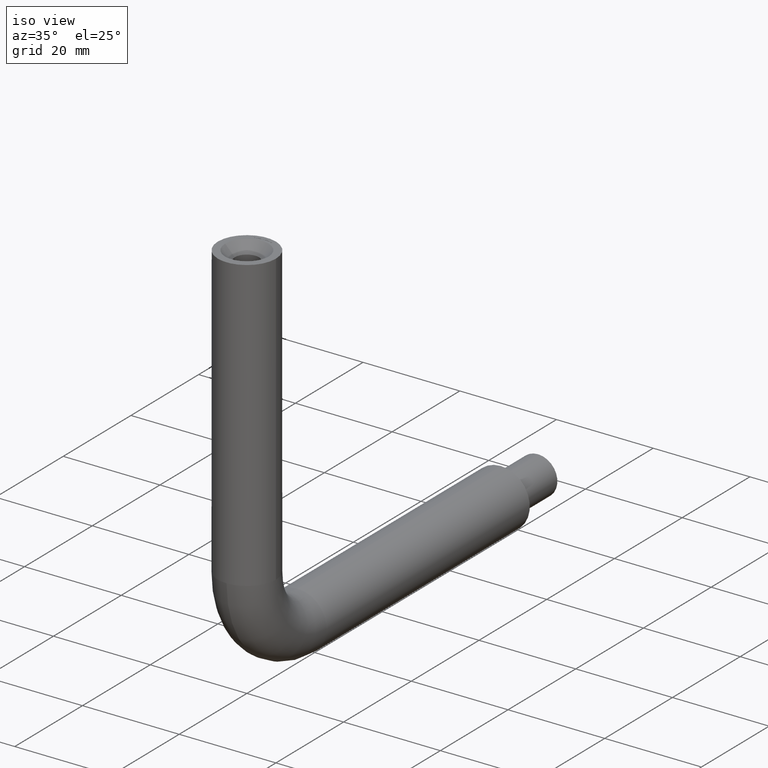
[diagram: clean part render]
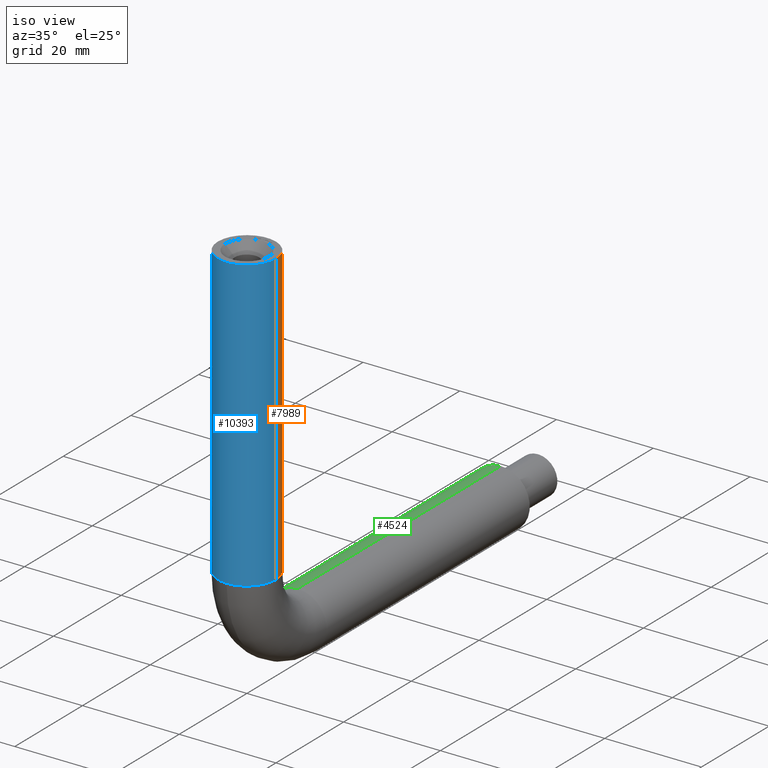
[diagram: same view with three faces highlighted in distinct colors, each labeled with its STEP entity id]
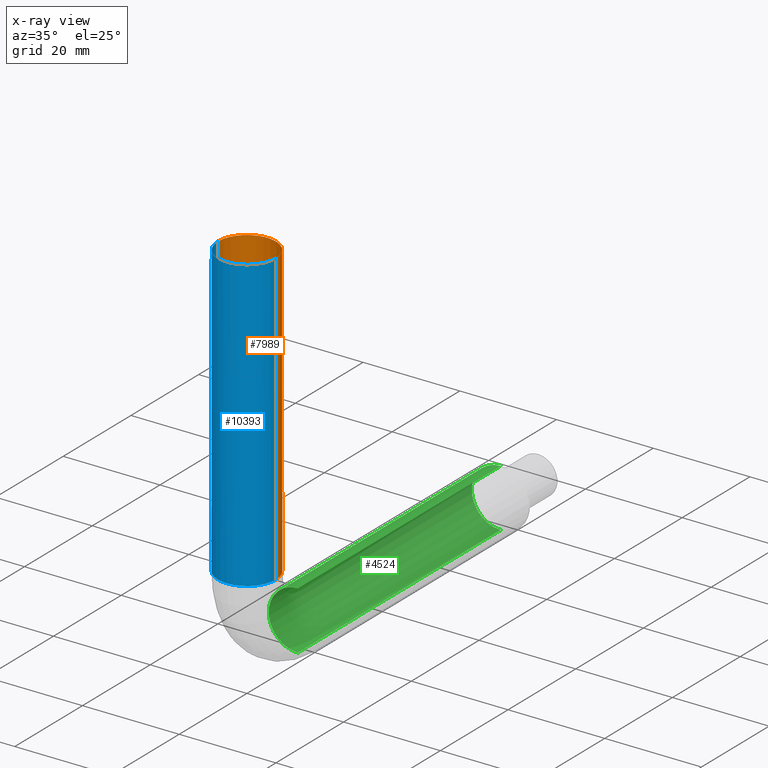
[diagram: x-ray of the same camera — body ghosted, the three highlighted faces saturated]
A machine part, iso view with three faces highlighted in distinct colors.
The next image is the same camera in x-ray (body ghosted, the three faces saturated) — at least one of them is partly hidden behind the body in this view.
Their STEP definitions:

[orange] entity #7989 — the highlighted cylindrical surface (edge-blend (fillet) strip) has radius 6 mm, axis along (-0, -0, 1).
#544 = EDGE_CURVE ( 'NONE', #12681, #10943, #8227, .T. ) ;
#631 = DIRECTION ( 'NONE',  ( -0.0000000000000000000, -0.0000000000000000000, 1.000000000000000000 ) ) ;
#1374 = CARTESIAN_POINT ( 'NONE',  ( 6.000000000000000900, 0.0000000000000000000, -59.99999999999989300 ) ) ;
#1826 = DIRECTION ( 'NONE',  ( 1.000000000000000000, 0.0000000000000000000, 0.0000000000000000000 ) ) ;
#1849 = CARTESIAN_POINT ( 'NONE',  ( 0.0000000000000000000, 0.0000000000000000000, -59.99999999999989300 ) ) ;
#1990 = VECTOR ( 'NONE', #12369, 1000.000000000000000 ) ;
#2068 = DIRECTION ( 'NONE',  ( 1.000000000000000000, 0.0000000000000000000, 0.0000000000000000000 ) ) ;
#2749 = CYLINDRICAL_SURFACE ( 'NONE', #7170, 6.000000000000000900 ) ;
#3036 = CIRCLE ( 'NONE', #13271, 6.000000000000000900 ) ;
#3119 = AXIS2_PLACEMENT_3D ( 'NONE', #1849, #12845, #10703 ) ;
#3825 = EDGE_CURVE ( 'NONE', #11259, #9436, #10458, .T. ) ;
#3893 = ORIENTED_EDGE ( 'NONE', *, *, #7891, .T. ) ;
#4550 = CARTESIAN_POINT ( 'NONE',  ( -6.000000000000000900, 7.347880794884120700E-016, -59.99999999999989300 ) ) ;
#4681 = ORIENTED_EDGE ( 'NONE', *, *, #3825, .F. ) ;
#5143 = DIRECTION ( 'NONE',  ( 0.0000000000000000000, 0.0000000000000000000, 1.000000000000000000 ) ) ;
#5489 = ORIENTED_EDGE ( 'NONE', *, *, #6338, .F. ) ;
#5652 = AXIS2_PLACEMENT_3D ( 'NONE', #8731, #10969, #2068 ) ;
#6077 = EDGE_LOOP ( 'NONE', ( #3893, #8747, #12704, #4681, #5489 ) ) ;
#6257 = CARTESIAN_POINT ( 'NONE',  ( -6.000000000000000900, 7.347880794884120700E-016, 0.0000000000000000000 ) ) ;
#6338 = EDGE_CURVE ( 'NONE', #13415, #11259, #7718, .T. ) ;
#6550 = DIRECTION ( 'NONE',  ( 1.000000000000000000, 0.0000000000000000000, 0.0000000000000000000 ) ) ;
#7170 = AXIS2_PLACEMENT_3D ( 'NONE', #11866, #11912, #6550 ) ;
#7444 = EDGE_CURVE ( 'NONE', #10943, #9436, #13180, .T. ) ;
#7718 = LINE ( 'NONE', #14075, #11765 ) ;
#7891 = EDGE_CURVE ( 'NONE', #13415, #12681, #3036, .T. ) ;
#7989 = ADVANCED_FACE ( 'NONE', ( #9358 ), #2749, .T. ) ;
#8227 = CIRCLE ( 'NONE', #3119, 6.000000000000000900 ) ;
#8229 = CARTESIAN_POINT ( 'NONE',  ( 6.000000000000000900, 0.0000000000000000000, 0.0000000000000000000 ) ) ;
#8547 = CARTESIAN_POINT ( 'NONE',  ( 0.0000000000000000000, 0.0000000000000000000, -59.99999999999989300 ) ) ;
#8731 = CARTESIAN_POINT ( 'NONE',  ( -0.0000000000000000000, 0.0000000000000000000, 0.0000000000000000000 ) ) ;
#8747 = ORIENTED_EDGE ( 'NONE', *, *, #544, .T. ) ;
#9358 = FACE_OUTER_BOUND ( 'NONE', #6077, .T. ) ;
#9436 = VERTEX_POINT ( 'NONE', #6257 ) ;
#10458 = CIRCLE ( 'NONE', #5652, 6.000000000000000900 ) ;
#10703 = DIRECTION ( 'NONE',  ( 1.000000000000000000, 0.0000000000000000000, 0.0000000000000000000 ) ) ;
#10943 = VERTEX_POINT ( 'NONE', #14204 ) ;
#10969 = DIRECTION ( 'NONE',  ( 0.0000000000000000000, 0.0000000000000000000, 1.000000000000000000 ) ) ;
#11259 = VERTEX_POINT ( 'NONE', #8229 ) ;
#11765 = VECTOR ( 'NONE', #631, 1000.000000000000000 ) ;
#11866 = CARTESIAN_POINT ( 'NONE',  ( 0.0000000000000000000, 0.0000000000000000000, -59.99999999999989300 ) ) ;
#11912 = DIRECTION ( 'NONE',  ( -0.0000000000000000000, -0.0000000000000000000, 1.000000000000000000 ) ) ;
#12006 = CARTESIAN_POINT ( 'NONE',  ( -7.347880794884119700E-016, 6.000000000000000900, -59.99999999999989300 ) ) ;
#12369 = DIRECTION ( 'NONE',  ( -0.0000000000000000000, -0.0000000000000000000, 1.000000000000000000 ) ) ;
#12681 = VERTEX_POINT ( 'NONE', #12006 ) ;
#12704 = ORIENTED_EDGE ( 'NONE', *, *, #7444, .T. ) ;
#12845 = DIRECTION ( 'NONE',  ( 0.0000000000000000000, 0.0000000000000000000, 1.000000000000000000 ) ) ;
#13180 = LINE ( 'NONE', #4550, #1990 ) ;
#13271 = AXIS2_PLACEMENT_3D ( 'NONE', #8547, #5143, #1826 ) ;
#13415 = VERTEX_POINT ( 'NONE', #1374 ) ;
#14075 = CARTESIAN_POINT ( 'NONE',  ( 6.000000000000000900, 0.0000000000000000000, -59.99999999999989300 ) ) ;
#14204 = CARTESIAN_POINT ( 'NONE',  ( -6.000000000000000900, 7.347880794884120700E-016, -59.99999999999989300 ) ) ;

[blue] entity #10393 — the highlighted cylindrical surface (edge-blend (fillet) strip) has radius 6 mm, axis along (-0, -0, 1).
#341 = EDGE_CURVE ( 'NONE', #6390, #13415, #13676, .T. ) ;
#577 = CARTESIAN_POINT ( 'NONE',  ( 0.0000000000000000000, -6.000000000000001800, -59.99999999999989300 ) ) ;
#631 = DIRECTION ( 'NONE',  ( -0.0000000000000000000, -0.0000000000000000000, 1.000000000000000000 ) ) ;
#1218 = CARTESIAN_POINT ( 'NONE',  ( 0.0000000000000000000, 0.0000000000000000000, -59.99999999999989300 ) ) ;
#1374 = CARTESIAN_POINT ( 'NONE',  ( 6.000000000000000900, 0.0000000000000000000, -59.99999999999989300 ) ) ;
#1393 = DIRECTION ( 'NONE',  ( 0.0000000000000000000, 0.0000000000000000000, 1.000000000000000000 ) ) ;
#1408 = ORIENTED_EDGE ( 'NONE', *, *, #7444, .F. ) ;
#1616 = DIRECTION ( 'NONE',  ( 0.0000000000000000000, 0.0000000000000000000, 1.000000000000000000 ) ) ;
#1835 = EDGE_CURVE ( 'NONE', #10943, #6390, #10648, .T. ) ;
#1990 = VECTOR ( 'NONE', #12369, 1000.000000000000000 ) ;
#2286 = DIRECTION ( 'NONE',  ( -0.0000000000000000000, -0.0000000000000000000, 1.000000000000000000 ) ) ;
#3049 = ORIENTED_EDGE ( 'NONE', *, *, #341, .T. ) ;
#3433 = ORIENTED_EDGE ( 'NONE', *, *, #6338, .T. ) ;
#4323 = AXIS2_PLACEMENT_3D ( 'NONE', #9177, #1393, #8202 ) ;
#4550 = CARTESIAN_POINT ( 'NONE',  ( -6.000000000000000900, 7.347880794884120700E-016, -59.99999999999989300 ) ) ;
#4590 = CIRCLE ( 'NONE', #5026, 6.000000000000000900 ) ;
#4628 = DIRECTION ( 'NONE',  ( 1.000000000000000000, 0.0000000000000000000, 0.0000000000000000000 ) ) ;
#4795 = ORIENTED_EDGE ( 'NONE', *, *, #7166, .F. ) ;
#5026 = AXIS2_PLACEMENT_3D ( 'NONE', #5030, #12846, #7264 ) ;
#5030 = CARTESIAN_POINT ( 'NONE',  ( -0.0000000000000000000, 0.0000000000000000000, 0.0000000000000000000 ) ) ;
#5318 = FACE_OUTER_BOUND ( 'NONE', #12617, .T. ) ;
#6257 = CARTESIAN_POINT ( 'NONE',  ( -6.000000000000000900, 7.347880794884120700E-016, 0.0000000000000000000 ) ) ;
#6338 = EDGE_CURVE ( 'NONE', #13415, #11259, #7718, .T. ) ;
#6390 = VERTEX_POINT ( 'NONE', #577 ) ;
#7166 = EDGE_CURVE ( 'NONE', #9436, #11259, #4590, .T. ) ;
#7208 = AXIS2_PLACEMENT_3D ( 'NONE', #13891, #1616, #11949 ) ;
#7264 = DIRECTION ( 'NONE',  ( 1.000000000000000000, 0.0000000000000000000, 0.0000000000000000000 ) ) ;
#7444 = EDGE_CURVE ( 'NONE', #10943, #9436, #13180, .T. ) ;
#7718 = LINE ( 'NONE', #14075, #11765 ) ;
#8202 = DIRECTION ( 'NONE',  ( 1.000000000000000000, 0.0000000000000000000, 0.0000000000000000000 ) ) ;
#8229 = CARTESIAN_POINT ( 'NONE',  ( 6.000000000000000900, 0.0000000000000000000, 0.0000000000000000000 ) ) ;
#9177 = CARTESIAN_POINT ( 'NONE',  ( 0.0000000000000000000, 0.0000000000000000000, -59.99999999999989300 ) ) ;
#9436 = VERTEX_POINT ( 'NONE', #6257 ) ;
#9653 = ORIENTED_EDGE ( 'NONE', *, *, #1835, .T. ) ;
#10393 = ADVANCED_FACE ( 'NONE', ( #5318 ), #13914, .T. ) ;
#10648 = CIRCLE ( 'NONE', #4323, 6.000000000000000900 ) ;
#10943 = VERTEX_POINT ( 'NONE', #14204 ) ;
#11086 = AXIS2_PLACEMENT_3D ( 'NONE', #1218, #2286, #4628 ) ;
#11259 = VERTEX_POINT ( 'NONE', #8229 ) ;
#11765 = VECTOR ( 'NONE', #631, 1000.000000000000000 ) ;
#11949 = DIRECTION ( 'NONE',  ( 1.000000000000000000, 0.0000000000000000000, 0.0000000000000000000 ) ) ;
#12369 = DIRECTION ( 'NONE',  ( -0.0000000000000000000, -0.0000000000000000000, 1.000000000000000000 ) ) ;
#12617 = EDGE_LOOP ( 'NONE', ( #1408, #9653, #3049, #3433, #4795 ) ) ;
#12846 = DIRECTION ( 'NONE',  ( 0.0000000000000000000, 0.0000000000000000000, 1.000000000000000000 ) ) ;
#13180 = LINE ( 'NONE', #4550, #1990 ) ;
#13415 = VERTEX_POINT ( 'NONE', #1374 ) ;
#13676 = CIRCLE ( 'NONE', #7208, 6.000000000000000900 ) ;
#13891 = CARTESIAN_POINT ( 'NONE',  ( 0.0000000000000000000, 0.0000000000000000000, -59.99999999999989300 ) ) ;
#13914 = CYLINDRICAL_SURFACE ( 'NONE', #11086, 6.000000000000000900 ) ;
#14075 = CARTESIAN_POINT ( 'NONE',  ( 6.000000000000000900, 0.0000000000000000000, -59.99999999999989300 ) ) ;
#14204 = CARTESIAN_POINT ( 'NONE',  ( -6.000000000000000900, 7.347880794884120700E-016, -59.99999999999989300 ) ) ;

[green] entity #4524 — the highlighted cylindrical surface (edge-blend (fillet) strip) has radius 6 mm, axis along (0, 1, 0).
#217 = CIRCLE ( 'NONE', #6913, 6.000000000000005300 ) ;
#460 = DIRECTION ( 'NONE',  ( 1.000000000000000000, 0.0000000000000000000, 0.0000000000000000000 ) ) ;
#464 = DIRECTION ( 'NONE',  ( 0.0000000000000000000, 1.000000000000000000, 0.0000000000000000000 ) ) ;
#2229 = ORIENTED_EDGE ( 'NONE', *, *, #2294, .F. ) ;
#2294 = EDGE_CURVE ( 'NONE', #10794, #13984, #9064, .T. ) ;
#2400 = CARTESIAN_POINT ( 'NONE',  ( 7.347880794884114800E-016, 15.00000000000018700, -81.00000000000001400 ) ) ;
#2774 = CARTESIAN_POINT ( 'NONE',  ( 0.0000000000000000000, 15.00000000000002000, -69.00000000000000000 ) ) ;
#2849 = AXIS2_PLACEMENT_3D ( 'NONE', #8102, #12810, #460 ) ;
#2936 = DIRECTION ( 'NONE',  ( 0.0000000000000000000, 0.0000000000000000000, 1.000000000000000000 ) ) ;
#3270 = VECTOR ( 'NONE', #5880, 1000.000000000000000 ) ;
#3633 = CARTESIAN_POINT ( 'NONE',  ( 7.347880794884120700E-016, 15.00000000000010300, -81.00000000000001400 ) ) ;
#3704 = ORIENTED_EDGE ( 'NONE', *, *, #7911, .T. ) ;
#3908 = DIRECTION ( 'NONE',  ( -0.0000000000000000000, 1.000000000000000000, -0.0000000000000000000 ) ) ;
#4167 = CARTESIAN_POINT ( 'NONE',  ( 0.0000000000000000000, 15.00000000000010300, -69.00000000000000000 ) ) ;
#4524 = ADVANCED_FACE ( 'NONE', ( #7898 ), #8959, .T. ) ;
#4958 = LINE ( 'NONE', #4167, #7377 ) ;
#5174 = VERTEX_POINT ( 'NONE', #10088 ) ;
#5880 = DIRECTION ( 'NONE',  ( 0.0000000000000000000, 1.000000000000000000, 0.0000000000000000000 ) ) ;
#6101 = CARTESIAN_POINT ( 'NONE',  ( 0.0000000000000000000, 74.99999999999991500, -75.00000000000001400 ) ) ;
#6240 = LINE ( 'NONE', #3633, #3270 ) ;
#6867 = ORIENTED_EDGE ( 'NONE', *, *, #13472, .F. ) ;
#6913 = AXIS2_PLACEMENT_3D ( 'NONE', #6101, #3908, #2936 ) ;
#7377 = VECTOR ( 'NONE', #14104, 1000.000000000000000 ) ;
#7777 = EDGE_LOOP ( 'NONE', ( #14452, #2229, #3704, #6867 ) ) ;
#7898 = FACE_OUTER_BOUND ( 'NONE', #7777, .T. ) ;
#7911 = EDGE_CURVE ( 'NONE', #10794, #10880, #4958, .T. ) ;
#8102 = CARTESIAN_POINT ( 'NONE',  ( 0.0000000000000000000, 15.00000000000010300, -75.00000000000001400 ) ) ;
#8496 = EDGE_CURVE ( 'NONE', #13984, #5174, #6240, .T. ) ;
#8959 = CYLINDRICAL_SURFACE ( 'NONE', #10607, 6.000000000000005300 ) ;
#9064 = CIRCLE ( 'NONE', #2849, 6.000000000000000900 ) ;
#9372 = CARTESIAN_POINT ( 'NONE',  ( 0.0000000000000000000, 15.00000000000010300, -75.00000000000001400 ) ) ;
#10088 = CARTESIAN_POINT ( 'NONE',  ( 7.347880794884125700E-016, 74.99999999999991500, -81.00000000000001400 ) ) ;
#10607 = AXIS2_PLACEMENT_3D ( 'NONE', #9372, #464, #12768 ) ;
#10691 = CARTESIAN_POINT ( 'NONE',  ( 0.0000000000000000000, 74.99999999999991500, -69.00000000000000000 ) ) ;
#10794 = VERTEX_POINT ( 'NONE', #2774 ) ;
#10880 = VERTEX_POINT ( 'NONE', #10691 ) ;
#12768 = DIRECTION ( 'NONE',  ( 0.0000000000000000000, 0.0000000000000000000, 1.000000000000000000 ) ) ;
#12810 = DIRECTION ( 'NONE',  ( 0.0000000000000000000, -1.000000000000000000, -1.392757777031960500E-014 ) ) ;
#13472 = EDGE_CURVE ( 'NONE', #5174, #10880, #217, .T. ) ;
#13984 = VERTEX_POINT ( 'NONE', #2400 ) ;
#14104 = DIRECTION ( 'NONE',  ( 0.0000000000000000000, 1.000000000000000000, 0.0000000000000000000 ) ) ;
#14452 = ORIENTED_EDGE ( 'NONE', *, *, #8496, .F. ) ;